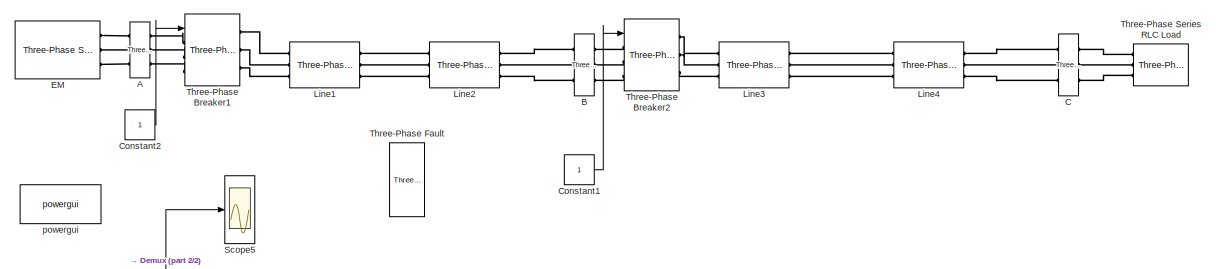
[diagram: root canvas - part 1/2, full width, top band]
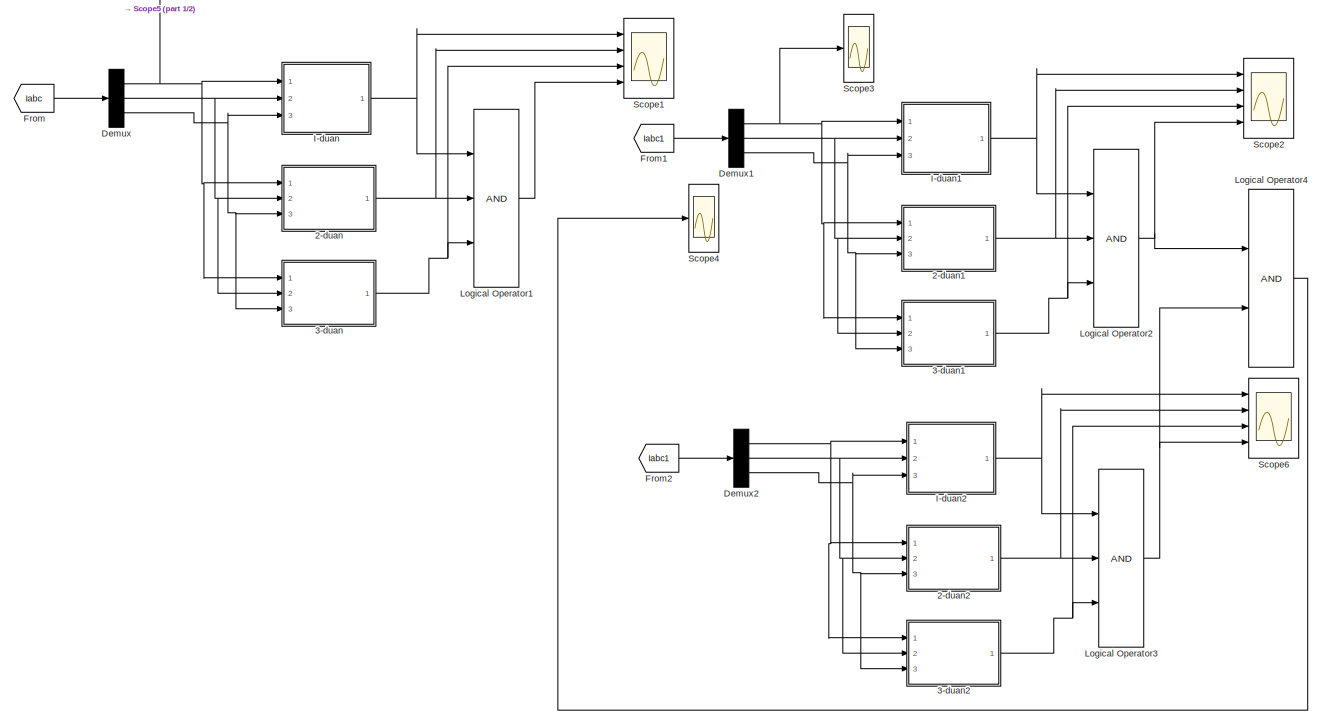
[diagram: root canvas - part 2/2, full width, middle band]
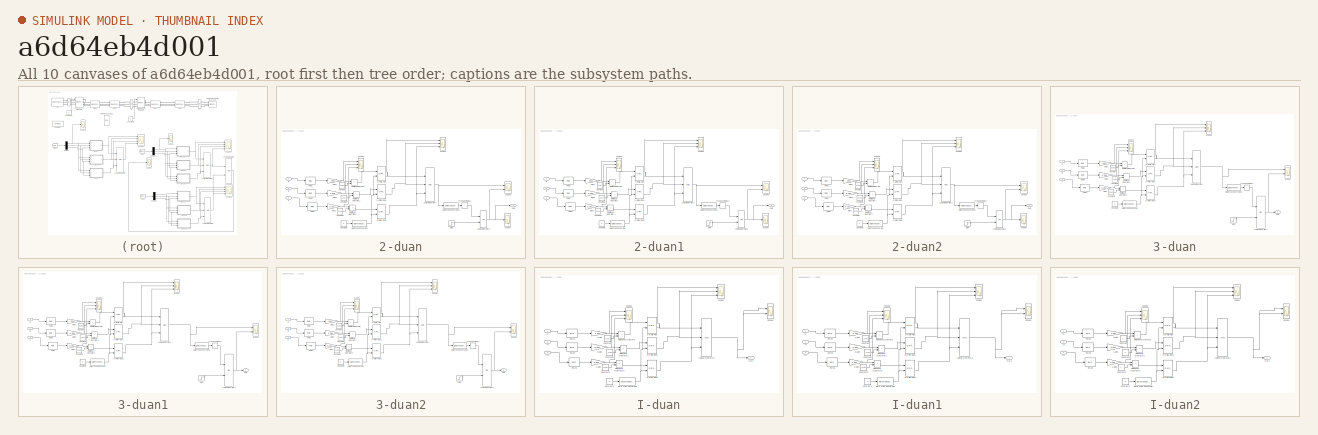
[diagram: thumbnail index - all 10 canvases of the model, root first then tree order]
MODEL slx_a6d64eb4d001
KIND model
CONFIG AbsTol = auto
CONFIG EnableMultiTasking = off
CONFIG FixedStep = auto
CONFIG MaxStep = auto
CONFIG MinStep = auto
CONFIG RelTol = 1e-3
CONFIG SampleTimeConstraint = Unconstrained
CONFIG Solver = ode23s
CONFIG SolverName = ode23s
CONFIG StartTime = 0.0
CONFIG StopTime = 2
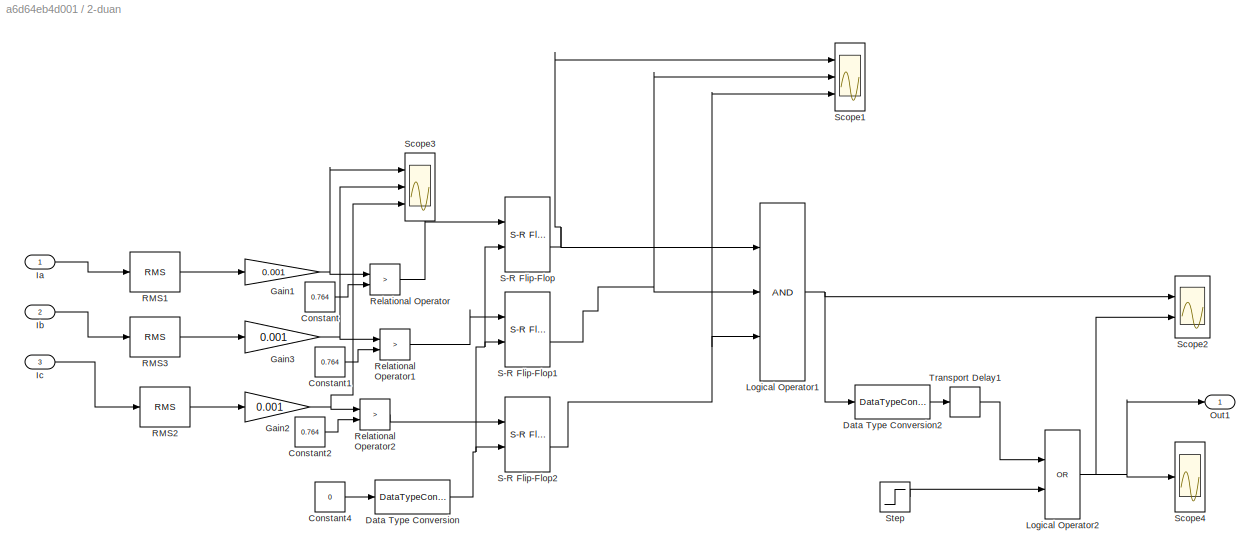
BLOCK [SubSystem] 2-duan
  Ports = [3, 1]
  RequestExecContextInheritance = off
BLOCK [Constant] 2-duan/Constant
  Value = 0.764
BLOCK [Constant] 2-duan/Constant1
  Value = 0.764
BLOCK [Constant] 2-duan/Constant2
  Value = 0.764
BLOCK [Constant] 2-duan/Constant4
  Value = 0
BLOCK [DataTypeConversion] 2-duan/Data Type Conversion
  OutDataTypeStr = boolean
  RndMeth = Floor
  SaturateOnIntegerOverflow = off
BLOCK [DataTypeConversion] 2-duan/Data Type Conversion2
  OutDataTypeStr = double
  RndMeth = Floor
  SaturateOnIntegerOverflow = off
BLOCK [Gain] 2-duan/Gain1
  Gain = 0.001
  OutDataTypeStr = Inherit: Inherit via internal rule
  ParamDataTypeStr = Inherit: Inherit via internal rule
  SaturateOnIntegerOverflow = off
BLOCK [Gain] 2-duan/Gain2
  Gain = 0.001
  OutDataTypeStr = Inherit: Inherit via internal rule
  ParamDataTypeStr = Inherit: Inherit via internal rule
  SaturateOnIntegerOverflow = off
BLOCK [Gain] 2-duan/Gain3
  Gain = 0.001
  OutDataTypeStr = Inherit: Inherit via internal rule
  ParamDataTypeStr = Inherit: Inherit via internal rule
  SaturateOnIntegerOverflow = off
BLOCK [Inport] 2-duan/Ia
  IconDisplay = Port number
BLOCK [Inport] 2-duan/Ib
  IconDisplay = Port number
  Port = 2
BLOCK [Inport] 2-duan/Ic
  IconDisplay = Port number
  Port = 3
BLOCK [Logic] 2-duan/Logical Operator1
  AllPortsSameDT = off
  Inputs = 3
  OutDataTypeStr = boolean
  Ports = [3, 1]
BLOCK [Logic] 2-duan/Logical Operator2
  AllPortsSameDT = off
  Operator = OR
  OutDataTypeStr = boolean
  Ports = [2, 1]
BLOCK [Outport] 2-duan/Out1
  IconDisplay = Port number
BLOCK [Reference] 2-duan/RMS1  REF=powerlib_meascontrol/Measurements/RMS
  Ports = [1, 1]
  SourceBlock = powerlib_meascontrol/Measurements/RMS
  SourceProductBaseCode = PS
  SourceProductName = Simscape Electrical
  SourceType = RMS
BLOCK [Reference] 2-duan/RMS2  REF=powerlib_meascontrol/Measurements/RMS
  Ports = [1, 1]
  SourceBlock = powerlib_meascontrol/Measurements/RMS
  SourceProductBaseCode = PS
  SourceProductName = Simscape Electrical
  SourceType = RMS
BLOCK [Reference] 2-duan/RMS3  REF=powerlib_meascontrol/Measurements/RMS
  Ports = [1, 1]
  SourceBlock = powerlib_meascontrol/Measurements/RMS
  SourceProductBaseCode = PS
  SourceProductName = Simscape Electrical
  SourceType = RMS
BLOCK [RelationalOperator] 2-duan/Relational Operator
  InputSameDT = off
  Operator = >
  OutDataTypeStr = boolean
  Ports = [2, 1]
BLOCK [RelationalOperator] 2-duan/Relational Operator1
  InputSameDT = off
  Operator = >
  OutDataTypeStr = boolean
  Ports = [2, 1]
BLOCK [RelationalOperator] 2-duan/Relational Operator2
  InputSameDT = off
  Operator = >
  OutDataTypeStr = boolean
  Ports = [2, 1]
BLOCK [Reference] 2-duan/S-R Flip-Flop  REF=simulink_extras/Flip Flops/S-R
Flip-Flop
  Ports = [2, 2]
  SourceBlock = simulink_extras/Flip Flops/S-R\nFlip-Flop
  SourceProductBaseCode = SL
  SourceProductName = Simulink
  SourceType = SRFlipFlop
BLOCK [Reference] 2-duan/S-R Flip-Flop1  REF=simulink_extras/Flip Flops/S-R
Flip-Flop
  Ports = [2, 2]
  SourceBlock = simulink_extras/Flip Flops/S-R\nFlip-Flop
  SourceProductBaseCode = SL
  SourceProductName = Simulink
  SourceType = SRFlipFlop
BLOCK [Reference] 2-duan/S-R Flip-Flop2  REF=simulink_extras/Flip Flops/S-R
Flip-Flop
  Ports = [2, 2]
  SourceBlock = simulink_extras/Flip Flops/S-R\nFlip-Flop
  SourceProductBaseCode = SL
  SourceProductName = Simulink
  SourceType = SRFlipFlop
BLOCK [Scope] 2-duan/Scope1
  Floating = off
  NumInputPorts = 3
  Ports = [3]
  ScopeSpecificationString = C++SS(StrPVP('Open','off'),StrPVP('TimeRange','auto'),StrPVP('TickLabels','OneTimeTick'),StrPVP('ShowLegends','off'),StrPVP('LimitDataPoints','off'),StrPVP('MaxDataPoints','5000'),StrPVP('SaveToWorkspace','off'),StrPVP('SaveName','ScopeData'),StrPVP('YMin','-0.125~-0.125~0.9'),StrPVP('YMax','1.125~1.125~1.1'),StrPVP('BlockParamSampleInput','off'),StrPVP('BlockParamSampleTime','-1'),StrPVP('ZoomMod...<+554ch>  <repeated x8 — deduplicated; at blocks: Scope1>
BLOCK [Scope] 2-duan/Scope2
  Floating = off
  NumInputPorts = 2
  Ports = [2]
  ScopeSpecificationString = C++SS(StrPVP('Open','off'),StrPVP('TimeRange','auto'),StrPVP('TickLabels','OneTimeTick'),StrPVP('ShowLegends','off'),StrPVP('LimitDataPoints','off'),StrPVP('MaxDataPoints','5000'),StrPVP('SaveToWorkspace','off'),StrPVP('SaveName','ScopeData2'),StrPVP('YMin','-0.125~-0.125'),StrPVP('YMax','1.125~1.125'),StrPVP('BlockParamSampleInput','off'),StrPVP('BlockParamSampleTime','-1'),StrPVP('ZoomMode','on'...<+518ch>  <repeated x6 — deduplicated; at blocks: Scope2>
BLOCK [Scope] 2-duan/Scope3
  Floating = off
  NumInputPorts = 3
  Ports = [3]
  ScopeSpecificationString = C++SS(StrPVP('Open','off'),StrPVP('TimeRange','auto'),StrPVP('TickLabels','OneTimeTick'),StrPVP('ShowLegends','off'),StrPVP('LimitDataPoints','off'),StrPVP('MaxDataPoints','5000'),StrPVP('SaveToWorkspace','off'),StrPVP('SaveName','ScopeData1'),StrPVP('YMin','-0.17216~-0.16711~-0.16783'),StrPVP('YMax','1.54943~1.50397~1.51049'),StrPVP('BlockParamSampleInput','off'),StrPVP('BlockParamSampleTime','-1...<+670ch>  <repeated x3 — deduplicated; at blocks: Scope3>
BLOCK [Scope] 2-duan/Scope4
  Floating = off
  NumInputPorts = 1
  Ports = [1]
  ScopeSpecificationString = C++SS(StrPVP('Open','off'),StrPVP('TimeRange','auto'),StrPVP('TickLabels','OneTimeTick'),StrPVP('ShowLegends','off'),StrPVP('LimitDataPoints','off'),StrPVP('MaxDataPoints','5000'),StrPVP('SaveToWorkspace','off'),StrPVP('SaveName','ScopeData2'),StrPVP('YMin','0.9'),StrPVP('YMax','1.1'),StrPVP('BlockParamSampleInput','off'),StrPVP('BlockParamSampleTime','-1'),StrPVP('ZoomMode','on'),StrPVP('Grid','o...<+471ch>  <repeated x3 — deduplicated; at blocks: Scope4>
BLOCK [Step] 2-duan/Step
  After = 0
  Before = 1
  SampleTime = 0
  Time = 0.501
BLOCK [TransportDelay] 2-duan/Transport Delay1
  DelayTime = 0.5
  Ports = [1, 1]
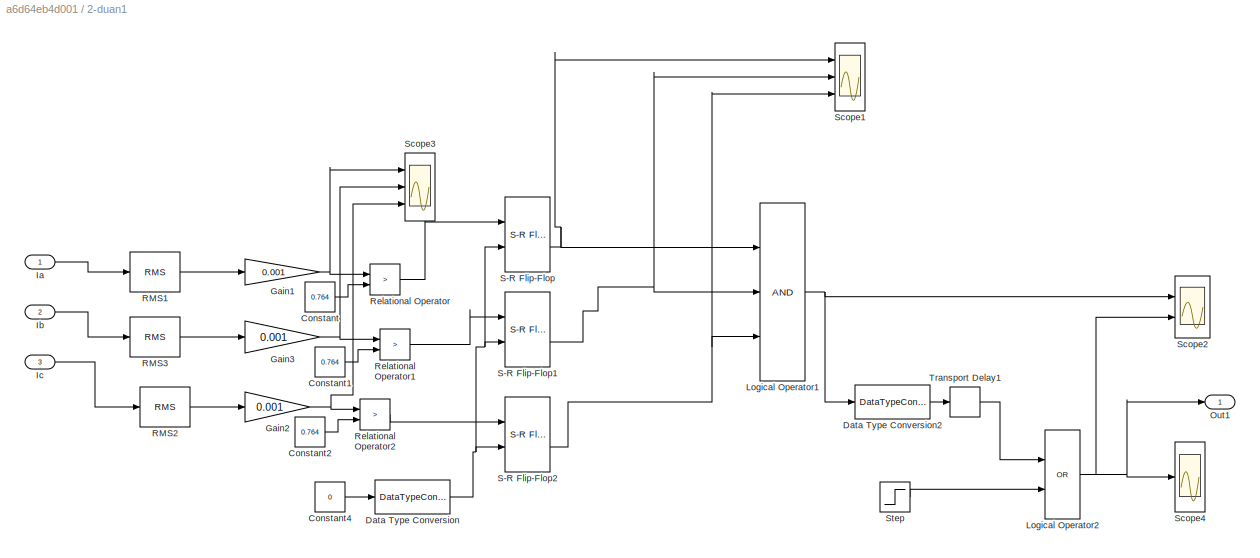
BLOCK [SubSystem] 2-duan1
  Ports = [3, 1]
  RequestExecContextInheritance = off
BLOCK [Constant] 2-duan1/Constant
  Value = 0.764
BLOCK [Constant] 2-duan1/Constant1
  Value = 0.764
BLOCK [Constant] 2-duan1/Constant2
  Value = 0.764
BLOCK [Constant] 2-duan1/Constant4
  Value = 0
BLOCK [DataTypeConversion] 2-duan1/Data Type Conversion
  OutDataTypeStr = boolean
  RndMeth = Floor
  SaturateOnIntegerOverflow = off
BLOCK [DataTypeConversion] 2-duan1/Data Type Conversion2
  OutDataTypeStr = double
  RndMeth = Floor
  SaturateOnIntegerOverflow = off
BLOCK [Gain] 2-duan1/Gain1
  Gain = 0.001
  OutDataTypeStr = Inherit: Inherit via internal rule
  ParamDataTypeStr = Inherit: Inherit via internal rule
  SaturateOnIntegerOverflow = off
BLOCK [Gain] 2-duan1/Gain2
  Gain = 0.001
  OutDataTypeStr = Inherit: Inherit via internal rule
  ParamDataTypeStr = Inherit: Inherit via internal rule
  SaturateOnIntegerOverflow = off
BLOCK [Gain] 2-duan1/Gain3
  Gain = 0.001
  OutDataTypeStr = Inherit: Inherit via internal rule
  ParamDataTypeStr = Inherit: Inherit via internal rule
  SaturateOnIntegerOverflow = off
BLOCK [Inport] 2-duan1/Ia
  IconDisplay = Port number
BLOCK [Inport] 2-duan1/Ib
  IconDisplay = Port number
  Port = 2
BLOCK [Inport] 2-duan1/Ic
  IconDisplay = Port number
  Port = 3
BLOCK [Logic] 2-duan1/Logical Operator1
  AllPortsSameDT = off
  Inputs = 3
  OutDataTypeStr = boolean
  Ports = [3, 1]
BLOCK [Logic] 2-duan1/Logical Operator2
  AllPortsSameDT = off
  Operator = OR
  OutDataTypeStr = boolean
  Ports = [2, 1]
BLOCK [Outport] 2-duan1/Out1
  IconDisplay = Port number
BLOCK [Reference] 2-duan1/RMS1  REF=powerlib_meascontrol/Measurements/RMS
  Ports = [1, 1]
  SourceBlock = powerlib_meascontrol/Measurements/RMS
  SourceProductBaseCode = PS
  SourceProductName = Simscape Electrical
  SourceType = RMS
BLOCK [Reference] 2-duan1/RMS2  REF=powerlib_meascontrol/Measurements/RMS
  Ports = [1, 1]
  SourceBlock = powerlib_meascontrol/Measurements/RMS
  SourceProductBaseCode = PS
  SourceProductName = Simscape Electrical
  SourceType = RMS
BLOCK [Reference] 2-duan1/RMS3  REF=powerlib_meascontrol/Measurements/RMS
  Ports = [1, 1]
  SourceBlock = powerlib_meascontrol/Measurements/RMS
  SourceProductBaseCode = PS
  SourceProductName = Simscape Electrical
  SourceType = RMS
BLOCK [RelationalOperator] 2-duan1/Relational Operator
  InputSameDT = off
  Operator = >
  OutDataTypeStr = boolean
  Ports = [2, 1]
BLOCK [RelationalOperator] 2-duan1/Relational Operator1
  InputSameDT = off
  Operator = >
  OutDataTypeStr = boolean
  Ports = [2, 1]
BLOCK [RelationalOperator] 2-duan1/Relational Operator2
  InputSameDT = off
  Operator = >
  OutDataTypeStr = boolean
  Ports = [2, 1]
BLOCK [Reference] 2-duan1/S-R Flip-Flop  REF=simulink_extras/Flip Flops/S-R
Flip-Flop
  Ports = [2, 2]
  SourceBlock = simulink_extras/Flip Flops/S-R\nFlip-Flop
  SourceProductBaseCode = SL
  SourceProductName = Simulink
  SourceType = SRFlipFlop
BLOCK [Reference] 2-duan1/S-R Flip-Flop1  REF=simulink_extras/Flip Flops/S-R
Flip-Flop
  Ports = [2, 2]
  SourceBlock = simulink_extras/Flip Flops/S-R\nFlip-Flop
  SourceProductBaseCode = SL
  SourceProductName = Simulink
  SourceType = SRFlipFlop
BLOCK [Reference] 2-duan1/S-R Flip-Flop2  REF=simulink_extras/Flip Flops/S-R
Flip-Flop
  Ports = [2, 2]
  SourceBlock = simulink_extras/Flip Flops/S-R\nFlip-Flop
  SourceProductBaseCode = SL
  SourceProductName = Simulink
  SourceType = SRFlipFlop
BLOCK [Scope] 2-duan1/Scope1
  Floating = off
  NumInputPorts = 3
  Ports = [3]
BLOCK [Scope] 2-duan1/Scope2
  Floating = off
  NumInputPorts = 2
  Ports = [2]
BLOCK [Scope] 2-duan1/Scope3
  Floating = off
  NumInputPorts = 3
  Ports = [3]
BLOCK [Scope] 2-duan1/Scope4
  Floating = off
  NumInputPorts = 1
  Ports = [1]
BLOCK [Step] 2-duan1/Step
  After = 0
  Before = 1
  SampleTime = 0
  Time = 2
BLOCK [TransportDelay] 2-duan1/Transport Delay1
  DelayTime = 0.5
  Ports = [1, 1]
BLOCK [SubSystem] 2-duan2
  Ports = [3, 1]
  RequestExecContextInheritance = off
BLOCK [Constant] 2-duan2/Constant
  Value = 0.764
BLOCK [Constant] 2-duan2/Constant1
  Value = 0.764
BLOCK [Constant] 2-duan2/Constant2
  Value = 0.764
BLOCK [Constant] 2-duan2/Constant4
  Value = 0
BLOCK [DataTypeConversion] 2-duan2/Data Type Conversion
  OutDataTypeStr = boolean
  RndMeth = Floor
  SaturateOnIntegerOverflow = off
BLOCK [DataTypeConversion] 2-duan2/Data Type Conversion2
  OutDataTypeStr = double
  RndMeth = Floor
  SaturateOnIntegerOverflow = off
BLOCK [Gain] 2-duan2/Gain1
  Gain = 0.001
  OutDataTypeStr = Inherit: Inherit via internal rule
  ParamDataTypeStr = Inherit: Inherit via internal rule
  SaturateOnIntegerOverflow = off
BLOCK [Gain] 2-duan2/Gain2
  Gain = 0.001
  OutDataTypeStr = Inherit: Inherit via internal rule
  ParamDataTypeStr = Inherit: Inherit via internal rule
  SaturateOnIntegerOverflow = off
BLOCK [Gain] 2-duan2/Gain3
  Gain = 0.001
  OutDataTypeStr = Inherit: Inherit via internal rule
  ParamDataTypeStr = Inherit: Inherit via internal rule
  SaturateOnIntegerOverflow = off
BLOCK [Inport] 2-duan2/Ia
  IconDisplay = Port number
BLOCK [Inport] 2-duan2/Ib
  IconDisplay = Port number
  Port = 2
BLOCK [Inport] 2-duan2/Ic
  IconDisplay = Port number
  Port = 3
BLOCK [Logic] 2-duan2/Logical Operator1
  AllPortsSameDT = off
  Inputs = 3
  OutDataTypeStr = boolean
  Ports = [3, 1]
BLOCK [Logic] 2-duan2/Logical Operator2
  AllPortsSameDT = off
  Operator = OR
  OutDataTypeStr = boolean
  Ports = [2, 1]
BLOCK [Outport] 2-duan2/Out1
  IconDisplay = Port number
BLOCK [Reference] 2-duan2/RMS1  REF=powerlib_meascontrol/Measurements/RMS
  Ports = [1, 1]
  SourceBlock = powerlib_meascontrol/Measurements/RMS
  SourceProductBaseCode = PS
  SourceProductName = Simscape Electrical
  SourceType = RMS
BLOCK [Reference] 2-duan2/RMS2  REF=powerlib_meascontrol/Measurements/RMS
  Ports = [1, 1]
  SourceBlock = powerlib_meascontrol/Measurements/RMS
  SourceProductBaseCode = PS
  SourceProductName = Simscape Electrical
  SourceType = RMS
BLOCK [Reference] 2-duan2/RMS3  REF=powerlib_meascontrol/Measurements/RMS
  Ports = [1, 1]
  SourceBlock = powerlib_meascontrol/Measurements/RMS
  SourceProductBaseCode = PS
  SourceProductName = Simscape Electrical
  SourceType = RMS
BLOCK [RelationalOperator] 2-duan2/Relational Operator
  InputSameDT = off
  Operator = >
  OutDataTypeStr = boolean
  Ports = [2, 1]
BLOCK [RelationalOperator] 2-duan2/Relational Operator1
  InputSameDT = off
  Operator = >
  OutDataTypeStr = boolean
  Ports = [2, 1]
BLOCK [RelationalOperator] 2-duan2/Relational Operator2
  InputSameDT = off
  Operator = >
  OutDataTypeStr = boolean
  Ports = [2, 1]
BLOCK [Reference] 2-duan2/S-R Flip-Flop  REF=simulink_extras/Flip Flops/S-R
Flip-Flop
  Ports = [2, 2]
  SourceBlock = simulink_extras/Flip Flops/S-R\nFlip-Flop
  SourceProductBaseCode = SL
  SourceProductName = Simulink
  SourceType = SRFlipFlop
BLOCK [Reference] 2-duan2/S-R Flip-Flop1  REF=simulink_extras/Flip Flops/S-R
Flip-Flop
  Ports = [2, 2]
  SourceBlock = simulink_extras/Flip Flops/S-R\nFlip-Flop
  SourceProductBaseCode = SL
  SourceProductName = Simulink
  SourceType = SRFlipFlop
BLOCK [Reference] 2-duan2/S-R Flip-Flop2  REF=simulink_extras/Flip Flops/S-R
Flip-Flop
  Ports = [2, 2]
  SourceBlock = simulink_extras/Flip Flops/S-R\nFlip-Flop
  SourceProductBaseCode = SL
  SourceProductName = Simulink
  SourceType = SRFlipFlop
BLOCK [Scope] 2-duan2/Scope1
  Floating = off
  NumInputPorts = 3
  Ports = [3]
BLOCK [Scope] 2-duan2/Scope2
  Floating = off
  NumInputPorts = 2
  Ports = [2]
BLOCK [Scope] 2-duan2/Scope3
  Floating = off
  NumInputPorts = 3
  Ports = [3]
BLOCK [Scope] 2-duan2/Scope4
  Floating = off
  NumInputPorts = 1
  Ports = [1]
BLOCK [Step] 2-duan2/Step
  After = 0
  Before = 1
  SampleTime = 0
  Time = 2
BLOCK [TransportDelay] 2-duan2/Transport Delay1
  DelayTime = 0.5
  Ports = [1, 1]
BLOCK [SubSystem] 3-duan
  Ports = [3, 1]
  RequestExecContextInheritance = off
BLOCK [Constant] 3-duan/Constant
  Value = 0.183
BLOCK [Constant] 3-duan/Constant1
  Value = 0.183
BLOCK [Constant] 3-duan/Constant2
  Value = 0.183
BLOCK [Constant] 3-duan/Constant4
  Value = 0
BLOCK [DataTypeConversion] 3-duan/Data Type Conversion
  OutDataTypeStr = boolean
  RndMeth = Floor
  SaturateOnIntegerOverflow = off
BLOCK [DataTypeConversion] 3-duan/Data Type Conversion2
  OutDataTypeStr = double
  RndMeth = Floor
  SaturateOnIntegerOverflow = off
BLOCK [Gain] 3-duan/Gain1
  Gain = 0.001
  OutDataTypeStr = Inherit: Inherit via internal rule
  ParamDataTypeStr = Inherit: Inherit via internal rule
  SaturateOnIntegerOverflow = off
BLOCK [Gain] 3-duan/Gain2
  Gain = 0.001
  OutDataTypeStr = Inherit: Inherit via internal rule
  ParamDataTypeStr = Inherit: Inherit via internal rule
  SaturateOnIntegerOverflow = off
BLOCK [Gain] 3-duan/Gain3
  Gain = 0.001
  OutDataTypeStr = Inherit: Inherit via internal rule
  ParamDataTypeStr = Inherit: Inherit via internal rule
  SaturateOnIntegerOverflow = off
BLOCK [Inport] 3-duan/Ia
  IconDisplay = Port number
BLOCK [Inport] 3-duan/Ib
  IconDisplay = Port number
  Port = 2
BLOCK [Inport] 3-duan/Ic
  IconDisplay = Port number
  Port = 3
BLOCK [Logic] 3-duan/Logical Operator1
  AllPortsSameDT = off
  Inputs = 3
  OutDataTypeStr = boolean
  Ports = [3, 1]
BLOCK [Logic] 3-duan/Logical Operator2
  AllPortsSameDT = off
  Operator = OR
  OutDataTypeStr = boolean
  Ports = [2, 1]
BLOCK [Outport] 3-duan/Out1
  IconDisplay = Port number
BLOCK [Reference] 3-duan/RMS1  REF=powerlib_meascontrol/Measurements/RMS
  Ports = [1, 1]
  SourceBlock = powerlib_meascontrol/Measurements/RMS
  SourceProductBaseCode = PS
  SourceProductName = Simscape Electrical
  SourceType = RMS
BLOCK [Reference] 3-duan/RMS2  REF=powerlib_meascontrol/Measurements/RMS
  Ports = [1, 1]
  SourceBlock = powerlib_meascontrol/Measurements/RMS
  SourceProductBaseCode = PS
  SourceProductName = Simscape Electrical
  SourceType = RMS
BLOCK [Reference] 3-duan/RMS3  REF=powerlib_meascontrol/Measurements/RMS
  Ports = [1, 1]
  SourceBlock = powerlib_meascontrol/Measurements/RMS
  SourceProductBaseCode = PS
  SourceProductName = Simscape Electrical
  SourceType = RMS
BLOCK [RelationalOperator] 3-duan/Relational Operator
  InputSameDT = off
  Operator = >
  OutDataTypeStr = boolean
  Ports = [2, 1]
BLOCK [RelationalOperator] 3-duan/Relational Operator1
  InputSameDT = off
  Operator = >
  OutDataTypeStr = boolean
  Ports = [2, 1]
BLOCK [RelationalOperator] 3-duan/Relational Operator2
  InputSameDT = off
  Operator = >
  OutDataTypeStr = boolean
  Ports = [2, 1]
BLOCK [Reference] 3-duan/S-R Flip-Flop  REF=simulink_extras/Flip Flops/S-R
Flip-Flop
  Ports = [2, 2]
  SourceBlock = simulink_extras/Flip Flops/S-R\nFlip-Flop
  SourceProductBaseCode = SL
  SourceProductName = Simulink
  SourceType = SRFlipFlop
BLOCK [Reference] 3-duan/S-R Flip-Flop1  REF=simulink_extras/Flip Flops/S-R
Flip-Flop
  Ports = [2, 2]
  SourceBlock = simulink_extras/Flip Flops/S-R\nFlip-Flop
  SourceProductBaseCode = SL
  SourceProductName = Simulink
  SourceType = SRFlipFlop
BLOCK [Reference] 3-duan/S-R Flip-Flop2  REF=simulink_extras/Flip Flops/S-R
Flip-Flop
  Ports = [2, 2]
  SourceBlock = simulink_extras/Flip Flops/S-R\nFlip-Flop
  SourceProductBaseCode = SL
  SourceProductName = Simulink
  SourceType = SRFlipFlop
BLOCK [Scope] 3-duan/Scope1
  Floating = off
  NumInputPorts = 3
  Ports = [3]
BLOCK [Scope] 3-duan/Scope2
  Floating = off
  NumInputPorts = 2
  Ports = [2]
BLOCK [Scope] 3-duan/Scope3
  Floating = off
  NumInputPorts = 3
  Ports = [3]
  ScopeSpecificationString = C++SS(StrPVP('Open','off'),StrPVP('TimeRange','auto'),StrPVP('TickLabels','OneTimeTick'),StrPVP('ShowLegends','off'),StrPVP('LimitDataPoints','off'),StrPVP('MaxDataPoints','5000'),StrPVP('SaveToWorkspace','off'),StrPVP('SaveName','ScopeData1'),StrPVP('YMin','-0.27745~-0.25364~-0.24876'),StrPVP('YMax','2.49701~2.28279~2.23883'),StrPVP('BlockParamSampleInput','off'),StrPVP('BlockParamSampleTime','-1...<+670ch>  <repeated x4 — deduplicated; at blocks: Scope3>
BLOCK [Step] 3-duan/Step
  After = 0
  Before = 1
  SampleTime = 0
  Time = 1.501
BLOCK [TransportDelay] 3-duan/Transport Delay1
  DelayTime = 1.5
  Ports = [1, 1]
BLOCK [SubSystem] 3-duan1
  Ports = [3, 1]
  RequestExecContextInheritance = off
BLOCK [Constant] 3-duan1/Constant
  Value = 0.183
BLOCK [Constant] 3-duan1/Constant1
  Value = 0.183
BLOCK [Constant] 3-duan1/Constant2
  Value = 0.183
BLOCK [Constant] 3-duan1/Constant4
  Value = 0
BLOCK [DataTypeConversion] 3-duan1/Data Type Conversion
  OutDataTypeStr = boolean
  RndMeth = Floor
  SaturateOnIntegerOverflow = off
BLOCK [DataTypeConversion] 3-duan1/Data Type Conversion2
  OutDataTypeStr = double
  RndMeth = Floor
  SaturateOnIntegerOverflow = off
BLOCK [Gain] 3-duan1/Gain1
  Gain = 0.001
  OutDataTypeStr = Inherit: Inherit via internal rule
  ParamDataTypeStr = Inherit: Inherit via internal rule
  SaturateOnIntegerOverflow = off
BLOCK [Gain] 3-duan1/Gain2
  Gain = 0.001
  OutDataTypeStr = Inherit: Inherit via internal rule
  ParamDataTypeStr = Inherit: Inherit via internal rule
  SaturateOnIntegerOverflow = off
BLOCK [Gain] 3-duan1/Gain3
  Gain = 0.001
  OutDataTypeStr = Inherit: Inherit via internal rule
  ParamDataTypeStr = Inherit: Inherit via internal rule
  SaturateOnIntegerOverflow = off
BLOCK [Inport] 3-duan1/Ia
  IconDisplay = Port number
BLOCK [Inport] 3-duan1/Ib
  IconDisplay = Port number
  Port = 2
BLOCK [Inport] 3-duan1/Ic
  IconDisplay = Port number
  Port = 3
BLOCK [Logic] 3-duan1/Logical Operator1
  AllPortsSameDT = off
  Inputs = 3
  OutDataTypeStr = boolean
  Ports = [3, 1]
BLOCK [Logic] 3-duan1/Logical Operator2
  AllPortsSameDT = off
  Operator = OR
  OutDataTypeStr = boolean
  Ports = [2, 1]
BLOCK [Outport] 3-duan1/Out1
  IconDisplay = Port number
BLOCK [Reference] 3-duan1/RMS1  REF=powerlib_meascontrol/Measurements/RMS
  Ports = [1, 1]
  SourceBlock = powerlib_meascontrol/Measurements/RMS
  SourceProductBaseCode = PS
  SourceProductName = Simscape Electrical
  SourceType = RMS
BLOCK [Reference] 3-duan1/RMS2  REF=powerlib_meascontrol/Measurements/RMS
  Ports = [1, 1]
  SourceBlock = powerlib_meascontrol/Measurements/RMS
  SourceProductBaseCode = PS
  SourceProductName = Simscape Electrical
  SourceType = RMS
BLOCK [Reference] 3-duan1/RMS3  REF=powerlib_meascontrol/Measurements/RMS
  Ports = [1, 1]
  SourceBlock = powerlib_meascontrol/Measurements/RMS
  SourceProductBaseCode = PS
  SourceProductName = Simscape Electrical
  SourceType = RMS
BLOCK [RelationalOperator] 3-duan1/Relational Operator
  InputSameDT = off
  Operator = >
  OutDataTypeStr = boolean
  Ports = [2, 1]
BLOCK [RelationalOperator] 3-duan1/Relational Operator1
  InputSameDT = off
  Operator = >
  OutDataTypeStr = boolean
  Ports = [2, 1]
BLOCK [RelationalOperator] 3-duan1/Relational Operator2
  InputSameDT = off
  Operator = >
  OutDataTypeStr = boolean
  Ports = [2, 1]
BLOCK [Reference] 3-duan1/S-R Flip-Flop  REF=simulink_extras/Flip Flops/S-R
Flip-Flop
  Ports = [2, 2]
  SourceBlock = simulink_extras/Flip Flops/S-R\nFlip-Flop
  SourceProductBaseCode = SL
  SourceProductName = Simulink
  SourceType = SRFlipFlop
BLOCK [Reference] 3-duan1/S-R Flip-Flop1  REF=simulink_extras/Flip Flops/S-R
Flip-Flop
  Ports = [2, 2]
  SourceBlock = simulink_extras/Flip Flops/S-R\nFlip-Flop
  SourceProductBaseCode = SL
  SourceProductName = Simulink
  SourceType = SRFlipFlop
BLOCK [Reference] 3-duan1/S-R Flip-Flop2  REF=simulink_extras/Flip Flops/S-R
Flip-Flop
  Ports = [2, 2]
  SourceBlock = simulink_extras/Flip Flops/S-R\nFlip-Flop
  SourceProductBaseCode = SL
  SourceProductName = Simulink
  SourceType = SRFlipFlop
BLOCK [Scope] 3-duan1/Scope1
  Floating = off
  NumInputPorts = 3
  Ports = [3]
BLOCK [Scope] 3-duan1/Scope2
  Floating = off
  NumInputPorts = 2
  Ports = [2]
BLOCK [Scope] 3-duan1/Scope3
  Floating = off
  NumInputPorts = 3
  Ports = [3]
BLOCK [Step] 3-duan1/Step
  After = 0
  Before = 1
  SampleTime = 0
  Time = 2
BLOCK [TransportDelay] 3-duan1/Transport Delay1
  DelayTime = 1.5
  Ports = [1, 1]
BLOCK [SubSystem] 3-duan2
  Ports = [3, 1]
  RequestExecContextInheritance = off
BLOCK [Constant] 3-duan2/Constant
  Value = 0.183
BLOCK [Constant] 3-duan2/Constant1
  Value = 0.183
BLOCK [Constant] 3-duan2/Constant2
  Value = 0.183
BLOCK [Constant] 3-duan2/Constant4
  Value = 0
BLOCK [DataTypeConversion] 3-duan2/Data Type Conversion
  OutDataTypeStr = boolean
  RndMeth = Floor
  SaturateOnIntegerOverflow = off
BLOCK [DataTypeConversion] 3-duan2/Data Type Conversion2
  OutDataTypeStr = double
  RndMeth = Floor
  SaturateOnIntegerOverflow = off
BLOCK [Gain] 3-duan2/Gain1
  Gain = 0.001
  OutDataTypeStr = Inherit: Inherit via internal rule
  ParamDataTypeStr = Inherit: Inherit via internal rule
  SaturateOnIntegerOverflow = off
BLOCK [Gain] 3-duan2/Gain2
  Gain = 0.001
  OutDataTypeStr = Inherit: Inherit via internal rule
  ParamDataTypeStr = Inherit: Inherit via internal rule
  SaturateOnIntegerOverflow = off
BLOCK [Gain] 3-duan2/Gain3
  Gain = 0.001
  OutDataTypeStr = Inherit: Inherit via internal rule
  ParamDataTypeStr = Inherit: Inherit via internal rule
  SaturateOnIntegerOverflow = off
BLOCK [Inport] 3-duan2/Ia
  IconDisplay = Port number
BLOCK [Inport] 3-duan2/Ib
  IconDisplay = Port number
  Port = 2
BLOCK [Inport] 3-duan2/Ic
  IconDisplay = Port number
  Port = 3
BLOCK [Logic] 3-duan2/Logical Operator1
  AllPortsSameDT = off
  Inputs = 3
  OutDataTypeStr = boolean
  Ports = [3, 1]
BLOCK [Logic] 3-duan2/Logical Operator2
  AllPortsSameDT = off
  Operator = OR
  OutDataTypeStr = boolean
  Ports = [2, 1]
BLOCK [Outport] 3-duan2/Out1
  IconDisplay = Port number
BLOCK [Reference] 3-duan2/RMS1  REF=powerlib_meascontrol/Measurements/RMS
  Ports = [1, 1]
  SourceBlock = powerlib_meascontrol/Measurements/RMS
  SourceProductBaseCode = PS
  SourceProductName = Simscape Electrical
  SourceType = RMS
BLOCK [Reference] 3-duan2/RMS2  REF=powerlib_meascontrol/Measurements/RMS
  Ports = [1, 1]
  SourceBlock = powerlib_meascontrol/Measurements/RMS
  SourceProductBaseCode = PS
  SourceProductName = Simscape Electrical
  SourceType = RMS
BLOCK [Reference] 3-duan2/RMS3  REF=powerlib_meascontrol/Measurements/RMS
  Ports = [1, 1]
  SourceBlock = powerlib_meascontrol/Measurements/RMS
  SourceProductBaseCode = PS
  SourceProductName = Simscape Electrical
  SourceType = RMS
BLOCK [RelationalOperator] 3-duan2/Relational Operator
  InputSameDT = off
  Operator = >
  OutDataTypeStr = boolean
  Ports = [2, 1]
BLOCK [RelationalOperator] 3-duan2/Relational Operator1
  InputSameDT = off
  Operator = >
  OutDataTypeStr = boolean
  Ports = [2, 1]
BLOCK [RelationalOperator] 3-duan2/Relational Operator2
  InputSameDT = off
  Operator = >
  OutDataTypeStr = boolean
  Ports = [2, 1]
BLOCK [Reference] 3-duan2/S-R Flip-Flop  REF=simulink_extras/Flip Flops/S-R
Flip-Flop
  Ports = [2, 2]
  SourceBlock = simulink_extras/Flip Flops/S-R\nFlip-Flop
  SourceProductBaseCode = SL
  SourceProductName = Simulink
  SourceType = SRFlipFlop
BLOCK [Reference] 3-duan2/S-R Flip-Flop1  REF=simulink_extras/Flip Flops/S-R
Flip-Flop
  Ports = [2, 2]
  SourceBlock = simulink_extras/Flip Flops/S-R\nFlip-Flop
  SourceProductBaseCode = SL
  SourceProductName = Simulink
  SourceType = SRFlipFlop
BLOCK [Reference] 3-duan2/S-R Flip-Flop2  REF=simulink_extras/Flip Flops/S-R
Flip-Flop
  Ports = [2, 2]
  SourceBlock = simulink_extras/Flip Flops/S-R\nFlip-Flop
  SourceProductBaseCode = SL
  SourceProductName = Simulink
  SourceType = SRFlipFlop
BLOCK [Scope] 3-duan2/Scope1
  Floating = off
  NumInputPorts = 3
  Ports = [3]
BLOCK [Scope] 3-duan2/Scope2
  Floating = off
  NumInputPorts = 2
  Ports = [2]
BLOCK [Scope] 3-duan2/Scope3
  Floating = off
  NumInputPorts = 3
  Ports = [3]
BLOCK [Step] 3-duan2/Step
  After = 0
  Before = 1
  SampleTime = 0
  Time = 2
BLOCK [TransportDelay] 3-duan2/Transport Delay1
  DelayTime = 1.5
  Ports = [1, 1]
BLOCK [Reference] A  REF=powerlib/Measurements/Three-Phase
V-I Measurement
  Ports = [0, 0, 0, 0, 0, 3, 3]
  SourceBlock = powerlib/Measurements/Three-Phase\nV-I Measurement
  SourceProductBaseCode = PS
  SourceProductName = Simscape Electrical
  SourceType = Three-Phase VI Measurement
BLOCK [Reference] B  REF=powerlib/Measurements/Three-Phase
V-I Measurement
  Ports = [0, 0, 0, 0, 0, 3, 3]
  SourceBlock = powerlib/Measurements/Three-Phase\nV-I Measurement
  SourceProductBaseCode = PS
  SourceProductName = Simscape Electrical
  SourceType = Three-Phase VI Measurement
BLOCK [Reference] C  REF=powerlib/Measurements/Three-Phase
V-I Measurement
  Ports = [0, 0, 0, 0, 0, 3, 3]
  SourceBlock = powerlib/Measurements/Three-Phase\nV-I Measurement
  SourceProductBaseCode = PS
  SourceProductName = Simscape Electrical
  SourceType = Three-Phase VI Measurement
BLOCK [Constant] Constant1
BLOCK [Constant] Constant2
BLOCK [Demux] Demux
  DisplayOption = bar
  Outputs = 3
  Ports = [1, 3]
BLOCK [Demux] Demux1
  DisplayOption = bar
  Outputs = 3
  Ports = [1, 3]
BLOCK [Demux] Demux2
  DisplayOption = bar
  Outputs = 3
  Ports = [1, 3]
BLOCK [Reference] EM  REF=powerlib/Electrical
Sources/Three-Phase Source
  Ports = [0, 0, 0, 0, 0, 0, 3]
  SourceBlock = powerlib/Electrical\nSources/Three-Phase Source
  SourceProductBaseCode = PS
  SourceProductName = Simscape Electrical
  SourceType = Three-Phase Source
BLOCK [From] From
  GotoTag = Iabc
  TagVisibility = global
BLOCK [From] From1
  GotoTag = Iabc1
  TagVisibility = global
BLOCK [From] From2
  GotoTag = Iabc1
  TagVisibility = global
BLOCK [SubSystem] I-duan
  Ports = [3, 1]
  RequestExecContextInheritance = off
BLOCK [Constant] I-duan/Constant
  Value = 1.736
BLOCK [Constant] I-duan/Constant1
  Value = 1.736
BLOCK [Constant] I-duan/Constant2
  Value = 1.736
BLOCK [Constant] I-duan/Constant4
  Value = 0
BLOCK [DataTypeConversion] I-duan/Data Type Conversion
  OutDataTypeStr = boolean
  RndMeth = Floor
  SaturateOnIntegerOverflow = off
BLOCK [Gain] I-duan/Gain1
  Gain = 0.001
  OutDataTypeStr = Inherit: Inherit via internal rule
  ParamDataTypeStr = Inherit: Inherit via internal rule
  SaturateOnIntegerOverflow = off
BLOCK [Gain] I-duan/Gain2
  Gain = 0.001
  OutDataTypeStr = Inherit: Inherit via internal rule
  ParamDataTypeStr = Inherit: Inherit via internal rule
  SaturateOnIntegerOverflow = off
BLOCK [Gain] I-duan/Gain3
  Gain = 0.001
  OutDataTypeStr = Inherit: Inherit via internal rule
  ParamDataTypeStr = Inherit: Inherit via internal rule
  SaturateOnIntegerOverflow = off
BLOCK [Inport] I-duan/Ia
  IconDisplay = Port number
BLOCK [Inport] I-duan/Ib
  IconDisplay = Port number
  Port = 2
BLOCK [Inport] I-duan/Ic
  IconDisplay = Port number
  Port = 3
BLOCK [Logic] I-duan/Logical Operator1
  AllPortsSameDT = off
  Inputs = 3
  OutDataTypeStr = boolean
  Ports = [3, 1]
BLOCK [Outport] I-duan/Out1
  IconDisplay = Port number
BLOCK [Reference] I-duan/RMS1  REF=powerlib_meascontrol/Measurements/RMS
  Ports = [1, 1]
  SourceBlock = powerlib_meascontrol/Measurements/RMS
  SourceProductBaseCode = PS
  SourceProductName = Simscape Electrical
  SourceType = RMS
BLOCK [Reference] I-duan/RMS2  REF=powerlib_meascontrol/Measurements/RMS
  Ports = [1, 1]
  SourceBlock = powerlib_meascontrol/Measurements/RMS
  SourceProductBaseCode = PS
  SourceProductName = Simscape Electrical
  SourceType = RMS
BLOCK [Reference] I-duan/RMS3  REF=powerlib_meascontrol/Measurements/RMS
  Ports = [1, 1]
  SourceBlock = powerlib_meascontrol/Measurements/RMS
  SourceProductBaseCode = PS
  SourceProductName = Simscape Electrical
  SourceType = RMS
BLOCK [RelationalOperator] I-duan/Relational Operator
  InputSameDT = off
  Operator = >
  OutDataTypeStr = boolean
  Ports = [2, 1]
BLOCK [RelationalOperator] I-duan/Relational Operator1
  InputSameDT = off
  Operator = >
  OutDataTypeStr = boolean
  Ports = [2, 1]
BLOCK [RelationalOperator] I-duan/Relational Operator2
  InputSameDT = off
  Operator = >
  OutDataTypeStr = boolean
  Ports = [2, 1]
BLOCK [Reference] I-duan/S-R Flip-Flop  REF=simulink_extras/Flip Flops/S-R
Flip-Flop
  Ports = [2, 2]
  SourceBlock = simulink_extras/Flip Flops/S-R\nFlip-Flop
  SourceProductBaseCode = SL
  SourceProductName = Simulink
  SourceType = SRFlipFlop
BLOCK [Reference] I-duan/S-R Flip-Flop1  REF=simulink_extras/Flip Flops/S-R
Flip-Flop
  Ports = [2, 2]
  SourceBlock = simulink_extras/Flip Flops/S-R\nFlip-Flop
  SourceProductBaseCode = SL
  SourceProductName = Simulink
  SourceType = SRFlipFlop
BLOCK [Reference] I-duan/S-R Flip-Flop2  REF=simulink_extras/Flip Flops/S-R
Flip-Flop
  Ports = [2, 2]
  SourceBlock = simulink_extras/Flip Flops/S-R\nFlip-Flop
  SourceProductBaseCode = SL
  SourceProductName = Simulink
  SourceType = SRFlipFlop
BLOCK [Scope] I-duan/Scope1
  Floating = off
  NumInputPorts = 3
  Ports = [3]
  ScopeSpecificationString = C++SS(StrPVP('Open','off'),StrPVP('TimeRange','auto'),StrPVP('TickLabels','OneTimeTick'),StrPVP('ShowLegends','off'),StrPVP('LimitDataPoints','off'),StrPVP('MaxDataPoints','5000'),StrPVP('SaveToWorkspace','on'),StrPVP('SaveName','ScopeData'),StrPVP('YMin','-0.125~-0.125~0.9'),StrPVP('YMax','1.125~1.125~1.1'),StrPVP('BlockParamSampleInput','off'),StrPVP('BlockParamSampleTime','-1'),StrPVP('ZoomMode...<+553ch>
BLOCK [Scope] I-duan/Scope2
  Floating = off
  NumInputPorts = 2
  Ports = [2]
  ScopeSpecificationString = C++SS(StrPVP('Open','off'),StrPVP('TimeRange','auto'),StrPVP('TickLabels','OneTimeTick'),StrPVP('ShowLegends','off'),StrPVP('LimitDataPoints','off'),StrPVP('MaxDataPoints','5000'),StrPVP('SaveToWorkspace','off'),StrPVP('SaveName','ScopeData2'),StrPVP('YMin','0.9~0.9'),StrPVP('YMax','1.1~1.1'),StrPVP('BlockParamSampleInput','off'),StrPVP('BlockParamSampleTime','-1'),StrPVP('ZoomMode','on'),StrPVP('...<+508ch>  <repeated x3 — deduplicated; at blocks: Scope2>
BLOCK [Scope] I-duan/Scope3
  Floating = off
  NumInputPorts = 3
  Ports = [3]
BLOCK [SubSystem] I-duan1
  Ports = [3, 1]
  RequestExecContextInheritance = off
BLOCK [Constant] I-duan1/Constant
  Value = 1.736
BLOCK [Constant] I-duan1/Constant1
  Value = 1.736
BLOCK [Constant] I-duan1/Constant2
  Value = 1.736
BLOCK [Constant] I-duan1/Constant4
  Value = 0
BLOCK [DataTypeConversion] I-duan1/Data Type Conversion
  OutDataTypeStr = boolean
  RndMeth = Floor
  SaturateOnIntegerOverflow = off
BLOCK [Gain] I-duan1/Gain1
  Gain = 0.001
  OutDataTypeStr = Inherit: Inherit via internal rule
  ParamDataTypeStr = Inherit: Inherit via internal rule
  SaturateOnIntegerOverflow = off
BLOCK [Gain] I-duan1/Gain2
  Gain = 0.001
  OutDataTypeStr = Inherit: Inherit via internal rule
  ParamDataTypeStr = Inherit: Inherit via internal rule
  SaturateOnIntegerOverflow = off
BLOCK [Gain] I-duan1/Gain3
  Gain = 0.001
  OutDataTypeStr = Inherit: Inherit via internal rule
  ParamDataTypeStr = Inherit: Inherit via internal rule
  SaturateOnIntegerOverflow = off
BLOCK [Inport] I-duan1/Ia
  IconDisplay = Port number
BLOCK [Inport] I-duan1/Ib
  IconDisplay = Port number
  Port = 2
BLOCK [Inport] I-duan1/Ic
  IconDisplay = Port number
  Port = 3
BLOCK [Logic] I-duan1/Logical Operator1
  AllPortsSameDT = off
  Inputs = 3
  OutDataTypeStr = boolean
  Ports = [3, 1]
BLOCK [Outport] I-duan1/Out1
  IconDisplay = Port number
BLOCK [Reference] I-duan1/RMS1  REF=powerlib_meascontrol/Measurements/RMS
  Ports = [1, 1]
  SourceBlock = powerlib_meascontrol/Measurements/RMS
  SourceProductBaseCode = PS
  SourceProductName = Simscape Electrical
  SourceType = RMS
BLOCK [Reference] I-duan1/RMS2  REF=powerlib_meascontrol/Measurements/RMS
  Ports = [1, 1]
  SourceBlock = powerlib_meascontrol/Measurements/RMS
  SourceProductBaseCode = PS
  SourceProductName = Simscape Electrical
  SourceType = RMS
BLOCK [Reference] I-duan1/RMS3  REF=powerlib_meascontrol/Measurements/RMS
  Ports = [1, 1]
  SourceBlock = powerlib_meascontrol/Measurements/RMS
  SourceProductBaseCode = PS
  SourceProductName = Simscape Electrical
  SourceType = RMS
BLOCK [RelationalOperator] I-duan1/Relational Operator
  InputSameDT = off
  Operator = >
  OutDataTypeStr = boolean
  Ports = [2, 1]
BLOCK [RelationalOperator] I-duan1/Relational Operator1
  InputSameDT = off
  Operator = >
  OutDataTypeStr = boolean
  Ports = [2, 1]
BLOCK [RelationalOperator] I-duan1/Relational Operator2
  InputSameDT = off
  Operator = >
  OutDataTypeStr = boolean
  Ports = [2, 1]
BLOCK [Reference] I-duan1/S-R Flip-Flop  REF=simulink_extras/Flip Flops/S-R
Flip-Flop
  Ports = [2, 2]
  SourceBlock = simulink_extras/Flip Flops/S-R\nFlip-Flop
  SourceProductBaseCode = SL
  SourceProductName = Simulink
  SourceType = SRFlipFlop
BLOCK [Reference] I-duan1/S-R Flip-Flop1  REF=simulink_extras/Flip Flops/S-R
Flip-Flop
  Ports = [2, 2]
  SourceBlock = simulink_extras/Flip Flops/S-R\nFlip-Flop
  SourceProductBaseCode = SL
  SourceProductName = Simulink
  SourceType = SRFlipFlop
BLOCK [Reference] I-duan1/S-R Flip-Flop2  REF=simulink_extras/Flip Flops/S-R
Flip-Flop
  Ports = [2, 2]
  SourceBlock = simulink_extras/Flip Flops/S-R\nFlip-Flop
  SourceProductBaseCode = SL
  SourceProductName = Simulink
  SourceType = SRFlipFlop
BLOCK [Scope] I-duan1/Scope1
  Floating = off
  NumInputPorts = 3
  Ports = [3]
BLOCK [Scope] I-duan1/Scope2
  Floating = off
  NumInputPorts = 2
  Ports = [2]
BLOCK [Scope] I-duan1/Scope3
  Floating = off
  NumInputPorts = 3
  Ports = [3]
  ScopeSpecificationString = C++SS(StrPVP('Open','off'),StrPVP('TimeRange','auto'),StrPVP('TickLabels','OneTimeTick'),StrPVP('ShowLegends','off'),StrPVP('LimitDataPoints','off'),StrPVP('MaxDataPoints','5000'),StrPVP('SaveToWorkspace','off'),StrPVP('SaveName','ScopeData1'),StrPVP('YMin','-0.27745~-0.25364~-0.24876'),StrPVP('YMax','2.49701~2.28279~2.23883'),StrPVP('BlockParamSampleInput','off'),StrPVP('BlockParamSampleTime','-1...<+671ch>
BLOCK [SubSystem] I-duan2
  Ports = [3, 1]
  RequestExecContextInheritance = off
BLOCK [Constant] I-duan2/Constant
  Value = 1.
BLOCK [Constant] I-duan2/Constant1
  Value = 1.
BLOCK [Constant] I-duan2/Constant2
  Value = 1.
BLOCK [Constant] I-duan2/Constant4
  Value = 0
BLOCK [DataTypeConversion] I-duan2/Data Type Conversion
  OutDataTypeStr = boolean
  RndMeth = Floor
  SaturateOnIntegerOverflow = off
BLOCK [Gain] I-duan2/Gain1
  Gain = 0.001
  OutDataTypeStr = Inherit: Inherit via internal rule
  ParamDataTypeStr = Inherit: Inherit via internal rule
  SaturateOnIntegerOverflow = off
BLOCK [Gain] I-duan2/Gain2
  Gain = 0.001
  OutDataTypeStr = Inherit: Inherit via internal rule
  ParamDataTypeStr = Inherit: Inherit via internal rule
  SaturateOnIntegerOverflow = off
BLOCK [Gain] I-duan2/Gain3
  Gain = 0.001
  OutDataTypeStr = Inherit: Inherit via internal rule
  ParamDataTypeStr = Inherit: Inherit via internal rule
  SaturateOnIntegerOverflow = off
BLOCK [Inport] I-duan2/Ia
  IconDisplay = Port number
BLOCK [Inport] I-duan2/Ib
  IconDisplay = Port number
  Port = 2
BLOCK [Inport] I-duan2/Ic
  IconDisplay = Port number
  Port = 3
BLOCK [Logic] I-duan2/Logical Operator1
  AllPortsSameDT = off
  Inputs = 3
  OutDataTypeStr = boolean
  Ports = [3, 1]
BLOCK [Outport] I-duan2/Out1
  IconDisplay = Port number
BLOCK [Reference] I-duan2/RMS1  REF=powerlib_meascontrol/Measurements/RMS
  Ports = [1, 1]
  SourceBlock = powerlib_meascontrol/Measurements/RMS
  SourceProductBaseCode = PS
  SourceProductName = Simscape Electrical
  SourceType = RMS
BLOCK [Reference] I-duan2/RMS2  REF=powerlib_meascontrol/Measurements/RMS
  Ports = [1, 1]
  SourceBlock = powerlib_meascontrol/Measurements/RMS
  SourceProductBaseCode = PS
  SourceProductName = Simscape Electrical
  SourceType = RMS
BLOCK [Reference] I-duan2/RMS3  REF=powerlib_meascontrol/Measurements/RMS
  Ports = [1, 1]
  SourceBlock = powerlib_meascontrol/Measurements/RMS
  SourceProductBaseCode = PS
  SourceProductName = Simscape Electrical
  SourceType = RMS
BLOCK [RelationalOperator] I-duan2/Relational Operator
  InputSameDT = off
  Operator = >
  OutDataTypeStr = boolean
  Ports = [2, 1]
BLOCK [RelationalOperator] I-duan2/Relational Operator1
  InputSameDT = off
  Operator = >
  OutDataTypeStr = boolean
  Ports = [2, 1]
BLOCK [RelationalOperator] I-duan2/Relational Operator2
  InputSameDT = off
  Operator = >
  OutDataTypeStr = boolean
  Ports = [2, 1]
BLOCK [Reference] I-duan2/S-R Flip-Flop  REF=simulink_extras/Flip Flops/S-R
Flip-Flop
  Ports = [2, 2]
  SourceBlock = simulink_extras/Flip Flops/S-R\nFlip-Flop
  SourceProductBaseCode = SL
  SourceProductName = Simulink
  SourceType = SRFlipFlop
BLOCK [Reference] I-duan2/S-R Flip-Flop1  REF=simulink_extras/Flip Flops/S-R
Flip-Flop
  Ports = [2, 2]
  SourceBlock = simulink_extras/Flip Flops/S-R\nFlip-Flop
  SourceProductBaseCode = SL
  SourceProductName = Simulink
  SourceType = SRFlipFlop
BLOCK [Reference] I-duan2/S-R Flip-Flop2  REF=simulink_extras/Flip Flops/S-R
Flip-Flop
  Ports = [2, 2]
  SourceBlock = simulink_extras/Flip Flops/S-R\nFlip-Flop
  SourceProductBaseCode = SL
  SourceProductName = Simulink
  SourceType = SRFlipFlop
BLOCK [Scope] I-duan2/Scope1
  Floating = off
  NumInputPorts = 3
  Ports = [3]
BLOCK [Scope] I-duan2/Scope2
  Floating = off
  NumInputPorts = 2
  Ports = [2]
BLOCK [Scope] I-duan2/Scope3
  Floating = off
  NumInputPorts = 3
  Ports = [3]
  ScopeSpecificationString = C++SS(StrPVP('Open','off'),StrPVP('TimeRange','auto'),StrPVP('TickLabels','OneTimeTick'),StrPVP('ShowLegends','off'),StrPVP('LimitDataPoints','off'),StrPVP('MaxDataPoints','5000'),StrPVP('SaveToWorkspace','off'),StrPVP('SaveName','ScopeData1'),StrPVP('YMin','-0.27745~-0.25364~-0.24876'),StrPVP('YMax','2.49701~2.28279~2.23883'),StrPVP('BlockParamSampleInput','off'),StrPVP('BlockParamSampleTime','-1...<+671ch>
BLOCK [Reference] Line1  REF=powerlib/Elements/Three-Phase
Series RLC Branch
  AttributesFormatString = \n
  Ports = [0, 0, 0, 0, 0, 3, 3]
  SourceBlock = powerlib/Elements/Three-Phase\nSeries RLC Branch
  SourceProductBaseCode = PS
  SourceProductName = Simscape Electrical
  SourceType = Three-Phase Series RLC Branch
BLOCK [Reference] Line2  REF=powerlib/Elements/Three-Phase
Series RLC Branch
  AttributesFormatString = \n
  Ports = [0, 0, 0, 0, 0, 3, 3]
  SourceBlock = powerlib/Elements/Three-Phase\nSeries RLC Branch
  SourceProductBaseCode = PS
  SourceProductName = Simscape Electrical
  SourceType = Three-Phase Series RLC Branch
BLOCK [Reference] Line3  REF=powerlib/Elements/Three-Phase
Series RLC Branch
  AttributesFormatString = \n
  Ports = [0, 0, 0, 0, 0, 3, 3]
  SourceBlock = powerlib/Elements/Three-Phase\nSeries RLC Branch
  SourceProductBaseCode = PS
  SourceProductName = Simscape Electrical
  SourceType = Three-Phase Series RLC Branch
BLOCK [Reference] Line4  REF=powerlib/Elements/Three-Phase
Series RLC Branch
  AttributesFormatString = \n
  Ports = [0, 0, 0, 0, 0, 3, 3]
  SourceBlock = powerlib/Elements/Three-Phase\nSeries RLC Branch
  SourceProductBaseCode = PS
  SourceProductName = Simscape Electrical
  SourceType = Three-Phase Series RLC Branch
BLOCK [Logic] Logical Operator1
  AllPortsSameDT = off
  Inputs = 3
  OutDataTypeStr = boolean
  Ports = [3, 1]
BLOCK [Logic] Logical Operator2
  AllPortsSameDT = off
  Inputs = 3
  OutDataTypeStr = boolean
  Ports = [3, 1]
BLOCK [Logic] Logical Operator3
  AllPortsSameDT = off
  Inputs = 3
  OutDataTypeStr = boolean
  Ports = [3, 1]
BLOCK [Logic] Logical Operator4
  AllPortsSameDT = off
  OutDataTypeStr = boolean
  Ports = [2, 1]
BLOCK [Scope] Scope1
  Floating = off
  NumInputPorts = 4
  Ports = [4]
  ScopeSpecificationString = Simulink.scopes.TimeScopeBlockCfg('CurrentConfiguration', extmgr.ConfigurationSet(extmgr.Configuration('Core','General UI',true,'FigureColor',[1 1 1]),extmgr.Configuration('Core','Source UI',true),extmgr.Configuration('Sources','WiredSimulink',true,'DataLoggingVariableName','ScopeData3','DataLoggingSaveFormat','StructureWithTime','DataLoggingDecimation','1','DataLoggingDecimateData',true),extmgr.C...<+7741ch>
BLOCK [Scope] Scope2
  Floating = off
  NumInputPorts = 4
  Ports = [4]
  ScopeSpecificationString = C++SS(StrPVP('Open','off'),StrPVP('TimeRange','auto'),StrPVP('TickLabels','OneTimeTick'),StrPVP('ShowLegends','off'),StrPVP('LimitDataPoints','off'),StrPVP('MaxDataPoints','5000'),StrPVP('SaveToWorkspace','off'),StrPVP('SaveName','ScopeData1'),StrPVP('YMin','0.9~0.9~0.9~0.9'),StrPVP('YMax','1.1~1.1~1.1~1.1'),StrPVP('BlockParamSampleInput','off'),StrPVP('BlockParamSampleTime','-1'),StrPVP('ZoomMode...<+829ch>
BLOCK [Scope] Scope3
  Floating = off
  NumInputPorts = 1
  Ports = [1]
  ScopeSpecificationString = Simulink.scopes.TimeScopeBlockCfg('CurrentConfiguration', extmgr.ConfigurationSet(extmgr.Configuration('Core','General UI',true,'FigureColor',[0.156862745098039 0.156862745098039 0.156862745098039]),extmgr.Configuration('Core','Source UI',true),extmgr.Configuration('Sources','WiredSimulink',true,'DataLoggingVariableName','ScopeData2','DataLoggingSaveFormat','StructureWithTime','DataLoggingDecimati...<+3137ch>
BLOCK [Scope] Scope4
  Floating = off
  NumInputPorts = 1
  Ports = [1]
  ScopeSpecificationString = Simulink.scopes.TimeScopeBlockCfg('CurrentConfiguration', extmgr.ConfigurationSet(extmgr.Configuration('Core','General UI',true,'FigureColor',[0.156862745098039 0.156862745098039 0.156862745098039]),extmgr.Configuration('Core','Source UI',true),extmgr.Configuration('Sources','WiredSimulink',true,'DataLoggingVariableName','ScopeData5','DataLoggingSaveFormat','StructureWithTime','DataLoggingDecimati...<+3169ch>
BLOCK [Scope] Scope5
  Floating = off
  NumInputPorts = 1
  Ports = [1]
  ScopeSpecificationString = Simulink.scopes.TimeScopeBlockCfg('CurrentConfiguration', extmgr.ConfigurationSet(extmgr.Configuration('Core','General UI',true,'FigureColor',[1 1 1]),extmgr.Configuration('Core','Source UI',true),extmgr.Configuration('Sources','WiredSimulink',true,'DataLogging',true,'DataLoggingVariableName','ScopeData4','DataLoggingSaveFormat','StructureWithTime','DataLoggingDecimation','1','DataLoggingDecimateD...<+2796ch>
BLOCK [Scope] Scope6
  Floating = off
  NumInputPorts = 4
  Ports = [4]
  ScopeSpecificationString = Simulink.scopes.TimeScopeBlockCfg('CurrentConfiguration', extmgr.ConfigurationSet(extmgr.Configuration('Core','General UI',true,'FigureColor',[1 1 1]),extmgr.Configuration('Core','Source UI',true),extmgr.Configuration('Sources','WiredSimulink',true,'DataLoggingVariableName','ScopeData2','DataLoggingSaveFormat','StructureWithTime','DataLoggingDecimation','1','DataLoggingDecimateData',true),extmgr.C...<+7799ch>
BLOCK [Reference] Three-Phase Breaker1  REF=powerlib/Elements/Three-Phase Breaker
  Ports = [1, 0, 0, 0, 0, 3, 3]
  SourceBlock = powerlib/Elements/Three-Phase Breaker
  SourceProductBaseCode = PS
  SourceProductName = Simscape Electrical
  SourceType = Three-Phase Breaker
BLOCK [Reference] Three-Phase Breaker2  REF=powerlib/Elements/Three-Phase Breaker
  Ports = [1, 0, 0, 0, 0, 3, 3]
  SourceBlock = powerlib/Elements/Three-Phase Breaker
  SourceProductBaseCode = PS
  SourceProductName = Simscape Electrical
  SourceType = Three-Phase Breaker
BLOCK [Reference] Three-Phase Fault  REF=powerlib/Elements/Three-Phase Fault
  Ports = [0, 0, 0, 0, 0, 3]
  SourceBlock = powerlib/Elements/Three-Phase Fault
  SourceProductBaseCode = PS
  SourceProductName = Simscape Electrical
  SourceType = Three-Phase Fault
BLOCK [Reference] Three-Phase Series RLC Load  REF=powerlib/Elements/Three-Phase
Series RLC Load
  AttributesFormatString = \n
  Ports = [0, 0, 0, 0, 0, 3]
  SourceBlock = powerlib/Elements/Three-Phase\nSeries RLC Load
  SourceProductBaseCode = PS
  SourceProductName = Simscape Electrical
  SourceType = Three-Phase Series RLC Load
BLOCK [Reference] powergui  REF=powerlib/powergui
  Ports = []
  Priority = 1
  SourceBlock = powerlib/powergui
  SourceProductBaseCode = PS
  SourceProductName = Simscape Power Systems
  SourceType = PSB option menu block
LINE 2-duan/Constant1:1 -> 2-duan/Relational Operator1:2
LINE 2-duan/Constant2:1 -> 2-duan/Relational Operator2:2
LINE 2-duan/Constant4:1 -> 2-duan/Data Type Conversion:1
LINE 2-duan/Constant:1 -> 2-duan/Relational Operator:2
LINE 2-duan/Data Type Conversion2:1 -> 2-duan/Transport Delay1:1
NET 2-duan/Data Type Conversion:1 -> 2-duan/S-R Flip-Flop1:2, 2-duan/S-R Flip-Flop2:2, 2-duan/S-R Flip-Flop:2
NET 2-duan/Gain1:1 -> 2-duan/Relational Operator:1, 2-duan/Scope3:1
NET 2-duan/Gain2:1 -> 2-duan/Relational Operator2:1, 2-duan/Scope3:3
NET 2-duan/Gain3:1 -> 2-duan/Relational Operator1:1, 2-duan/Scope3:2
LINE 2-duan/Ia:1 -> 2-duan/RMS1:1
LINE 2-duan/Ib:1 -> 2-duan/RMS3:1
LINE 2-duan/Ic:1 -> 2-duan/RMS2:1
NET 2-duan/Logical Operator1:1 -> 2-duan/Data Type Conversion2:1, 2-duan/Scope2:1
NET 2-duan/Logical Operator2:1 -> 2-duan/Out1:1, 2-duan/Scope2:2, 2-duan/Scope4:1
LINE 2-duan/RMS1:1 -> 2-duan/Gain1:1
LINE 2-duan/RMS2:1 -> 2-duan/Gain2:1
LINE 2-duan/RMS3:1 -> 2-duan/Gain3:1
LINE 2-duan/Relational Operator1:1 -> 2-duan/S-R Flip-Flop1:1
LINE 2-duan/Relational Operator2:1 -> 2-duan/S-R Flip-Flop2:1
LINE 2-duan/Relational Operator:1 -> 2-duan/S-R Flip-Flop:1
NET 2-duan/S-R Flip-Flop1:2 -> 2-duan/Logical Operator1:2, 2-duan/Scope1:2
NET 2-duan/S-R Flip-Flop2:2 -> 2-duan/Logical Operator1:3, 2-duan/Scope1:3
NET 2-duan/S-R Flip-Flop:2 -> 2-duan/Logical Operator1:1, 2-duan/Scope1:1
LINE 2-duan/Step:1 -> 2-duan/Logical Operator2:2
LINE 2-duan/Transport Delay1:1 -> 2-duan/Logical Operator2:1
LINE 2-duan1/Constant1:1 -> 2-duan1/Relational Operator1:2
LINE 2-duan1/Constant2:1 -> 2-duan1/Relational Operator2:2
LINE 2-duan1/Constant4:1 -> 2-duan1/Data Type Conversion:1
LINE 2-duan1/Constant:1 -> 2-duan1/Relational Operator:2
LINE 2-duan1/Data Type Conversion2:1 -> 2-duan1/Transport Delay1:1
NET 2-duan1/Data Type Conversion:1 -> 2-duan1/S-R Flip-Flop1:2, 2-duan1/S-R Flip-Flop2:2, 2-duan1/S-R Flip-Flop:2
NET 2-duan1/Gain1:1 -> 2-duan1/Relational Operator:1, 2-duan1/Scope3:1
NET 2-duan1/Gain2:1 -> 2-duan1/Relational Operator2:1, 2-duan1/Scope3:3
NET 2-duan1/Gain3:1 -> 2-duan1/Relational Operator1:1, 2-duan1/Scope3:2
LINE 2-duan1/Ia:1 -> 2-duan1/RMS1:1
LINE 2-duan1/Ib:1 -> 2-duan1/RMS3:1
LINE 2-duan1/Ic:1 -> 2-duan1/RMS2:1
NET 2-duan1/Logical Operator1:1 -> 2-duan1/Data Type Conversion2:1, 2-duan1/Scope2:1
NET 2-duan1/Logical Operator2:1 -> 2-duan1/Out1:1, 2-duan1/Scope2:2, 2-duan1/Scope4:1
LINE 2-duan1/RMS1:1 -> 2-duan1/Gain1:1
LINE 2-duan1/RMS2:1 -> 2-duan1/Gain2:1
LINE 2-duan1/RMS3:1 -> 2-duan1/Gain3:1
LINE 2-duan1/Relational Operator1:1 -> 2-duan1/S-R Flip-Flop1:1
LINE 2-duan1/Relational Operator2:1 -> 2-duan1/S-R Flip-Flop2:1
LINE 2-duan1/Relational Operator:1 -> 2-duan1/S-R Flip-Flop:1
NET 2-duan1/S-R Flip-Flop1:2 -> 2-duan1/Logical Operator1:2, 2-duan1/Scope1:2
NET 2-duan1/S-R Flip-Flop2:2 -> 2-duan1/Logical Operator1:3, 2-duan1/Scope1:3
NET 2-duan1/S-R Flip-Flop:2 -> 2-duan1/Logical Operator1:1, 2-duan1/Scope1:1
LINE 2-duan1/Step:1 -> 2-duan1/Logical Operator2:2
LINE 2-duan1/Transport Delay1:1 -> 2-duan1/Logical Operator2:1
NET 2-duan1:1 -> Logical Operator2:2, Scope2:2
LINE 2-duan2/Constant1:1 -> 2-duan2/Relational Operator1:2
LINE 2-duan2/Constant2:1 -> 2-duan2/Relational Operator2:2
LINE 2-duan2/Constant4:1 -> 2-duan2/Data Type Conversion:1
LINE 2-duan2/Constant:1 -> 2-duan2/Relational Operator:2
LINE 2-duan2/Data Type Conversion2:1 -> 2-duan2/Transport Delay1:1
NET 2-duan2/Data Type Conversion:1 -> 2-duan2/S-R Flip-Flop1:2, 2-duan2/S-R Flip-Flop2:2, 2-duan2/S-R Flip-Flop:2
NET 2-duan2/Gain1:1 -> 2-duan2/Relational Operator:1, 2-duan2/Scope3:1
NET 2-duan2/Gain2:1 -> 2-duan2/Relational Operator2:1, 2-duan2/Scope3:3
NET 2-duan2/Gain3:1 -> 2-duan2/Relational Operator1:1, 2-duan2/Scope3:2
LINE 2-duan2/Ia:1 -> 2-duan2/RMS1:1
LINE 2-duan2/Ib:1 -> 2-duan2/RMS3:1
LINE 2-duan2/Ic:1 -> 2-duan2/RMS2:1
NET 2-duan2/Logical Operator1:1 -> 2-duan2/Data Type Conversion2:1, 2-duan2/Scope2:1
NET 2-duan2/Logical Operator2:1 -> 2-duan2/Out1:1, 2-duan2/Scope2:2, 2-duan2/Scope4:1
LINE 2-duan2/RMS1:1 -> 2-duan2/Gain1:1
LINE 2-duan2/RMS2:1 -> 2-duan2/Gain2:1
LINE 2-duan2/RMS3:1 -> 2-duan2/Gain3:1
LINE 2-duan2/Relational Operator1:1 -> 2-duan2/S-R Flip-Flop1:1
LINE 2-duan2/Relational Operator2:1 -> 2-duan2/S-R Flip-Flop2:1
LINE 2-duan2/Relational Operator:1 -> 2-duan2/S-R Flip-Flop:1
NET 2-duan2/S-R Flip-Flop1:2 -> 2-duan2/Logical Operator1:2, 2-duan2/Scope1:2
NET 2-duan2/S-R Flip-Flop2:2 -> 2-duan2/Logical Operator1:3, 2-duan2/Scope1:3
NET 2-duan2/S-R Flip-Flop:2 -> 2-duan2/Logical Operator1:1, 2-duan2/Scope1:1
LINE 2-duan2/Step:1 -> 2-duan2/Logical Operator2:2
LINE 2-duan2/Transport Delay1:1 -> 2-duan2/Logical Operator2:1
NET 2-duan2:1 -> Logical Operator3:2, Scope6:2
NET 2-duan:1 -> Logical Operator1:2, Scope1:2
LINE 3-duan/Constant1:1 -> 3-duan/Relational Operator1:2
LINE 3-duan/Constant2:1 -> 3-duan/Relational Operator2:2
LINE 3-duan/Constant4:1 -> 3-duan/Data Type Conversion:1
LINE 3-duan/Constant:1 -> 3-duan/Relational Operator:2
LINE 3-duan/Data Type Conversion2:1 -> 3-duan/Transport Delay1:1
NET 3-duan/Data Type Conversion:1 -> 3-duan/S-R Flip-Flop1:2, 3-duan/S-R Flip-Flop2:2, 3-duan/S-R Flip-Flop:2
NET 3-duan/Gain1:1 -> 3-duan/Relational Operator:1, 3-duan/Scope3:1
NET 3-duan/Gain2:1 -> 3-duan/Relational Operator2:1, 3-duan/Scope3:3
NET 3-duan/Gain3:1 -> 3-duan/Relational Operator1:1, 3-duan/Scope3:2
LINE 3-duan/Ia:1 -> 3-duan/RMS1:1
LINE 3-duan/Ib:1 -> 3-duan/RMS3:1
LINE 3-duan/Ic:1 -> 3-duan/RMS2:1
NET 3-duan/Logical Operator1:1 -> 3-duan/Data Type Conversion2:1, 3-duan/Scope2:1
NET 3-duan/Logical Operator2:1 -> 3-duan/Out1:1, 3-duan/Scope2:2
LINE 3-duan/RMS1:1 -> 3-duan/Gain1:1
LINE 3-duan/RMS2:1 -> 3-duan/Gain2:1
LINE 3-duan/RMS3:1 -> 3-duan/Gain3:1
LINE 3-duan/Relational Operator1:1 -> 3-duan/S-R Flip-Flop1:1
LINE 3-duan/Relational Operator2:1 -> 3-duan/S-R Flip-Flop2:1
LINE 3-duan/Relational Operator:1 -> 3-duan/S-R Flip-Flop:1
NET 3-duan/S-R Flip-Flop1:2 -> 3-duan/Logical Operator1:2, 3-duan/Scope1:2
NET 3-duan/S-R Flip-Flop2:2 -> 3-duan/Logical Operator1:3, 3-duan/Scope1:3
NET 3-duan/S-R Flip-Flop:2 -> 3-duan/Logical Operator1:1, 3-duan/Scope1:1
LINE 3-duan/Step:1 -> 3-duan/Logical Operator2:2
LINE 3-duan/Transport Delay1:1 -> 3-duan/Logical Operator2:1
LINE 3-duan1/Constant1:1 -> 3-duan1/Relational Operator1:2
LINE 3-duan1/Constant2:1 -> 3-duan1/Relational Operator2:2
LINE 3-duan1/Constant4:1 -> 3-duan1/Data Type Conversion:1
LINE 3-duan1/Constant:1 -> 3-duan1/Relational Operator:2
LINE 3-duan1/Data Type Conversion2:1 -> 3-duan1/Transport Delay1:1
NET 3-duan1/Data Type Conversion:1 -> 3-duan1/S-R Flip-Flop1:2, 3-duan1/S-R Flip-Flop2:2, 3-duan1/S-R Flip-Flop:2
NET 3-duan1/Gain1:1 -> 3-duan1/Relational Operator:1, 3-duan1/Scope3:1
NET 3-duan1/Gain2:1 -> 3-duan1/Relational Operator2:1, 3-duan1/Scope3:3
NET 3-duan1/Gain3:1 -> 3-duan1/Relational Operator1:1, 3-duan1/Scope3:2
LINE 3-duan1/Ia:1 -> 3-duan1/RMS1:1
LINE 3-duan1/Ib:1 -> 3-duan1/RMS3:1
LINE 3-duan1/Ic:1 -> 3-duan1/RMS2:1
NET 3-duan1/Logical Operator1:1 -> 3-duan1/Data Type Conversion2:1, 3-duan1/Scope2:1
NET 3-duan1/Logical Operator2:1 -> 3-duan1/Out1:1, 3-duan1/Scope2:2
LINE 3-duan1/RMS1:1 -> 3-duan1/Gain1:1
LINE 3-duan1/RMS2:1 -> 3-duan1/Gain2:1
LINE 3-duan1/RMS3:1 -> 3-duan1/Gain3:1
LINE 3-duan1/Relational Operator1:1 -> 3-duan1/S-R Flip-Flop1:1
LINE 3-duan1/Relational Operator2:1 -> 3-duan1/S-R Flip-Flop2:1
LINE 3-duan1/Relational Operator:1 -> 3-duan1/S-R Flip-Flop:1
NET 3-duan1/S-R Flip-Flop1:2 -> 3-duan1/Logical Operator1:2, 3-duan1/Scope1:2
NET 3-duan1/S-R Flip-Flop2:2 -> 3-duan1/Logical Operator1:3, 3-duan1/Scope1:3
NET 3-duan1/S-R Flip-Flop:2 -> 3-duan1/Logical Operator1:1, 3-duan1/Scope1:1
LINE 3-duan1/Step:1 -> 3-duan1/Logical Operator2:2
LINE 3-duan1/Transport Delay1:1 -> 3-duan1/Logical Operator2:1
NET 3-duan1:1 -> Logical Operator2:3, Scope2:3
LINE 3-duan2/Constant1:1 -> 3-duan2/Relational Operator1:2
LINE 3-duan2/Constant2:1 -> 3-duan2/Relational Operator2:2
LINE 3-duan2/Constant4:1 -> 3-duan2/Data Type Conversion:1
LINE 3-duan2/Constant:1 -> 3-duan2/Relational Operator:2
LINE 3-duan2/Data Type Conversion2:1 -> 3-duan2/Transport Delay1:1
NET 3-duan2/Data Type Conversion:1 -> 3-duan2/S-R Flip-Flop1:2, 3-duan2/S-R Flip-Flop2:2, 3-duan2/S-R Flip-Flop:2
NET 3-duan2/Gain1:1 -> 3-duan2/Relational Operator:1, 3-duan2/Scope3:1
NET 3-duan2/Gain2:1 -> 3-duan2/Relational Operator2:1, 3-duan2/Scope3:3
NET 3-duan2/Gain3:1 -> 3-duan2/Relational Operator1:1, 3-duan2/Scope3:2
LINE 3-duan2/Ia:1 -> 3-duan2/RMS1:1
LINE 3-duan2/Ib:1 -> 3-duan2/RMS3:1
LINE 3-duan2/Ic:1 -> 3-duan2/RMS2:1
NET 3-duan2/Logical Operator1:1 -> 3-duan2/Data Type Conversion2:1, 3-duan2/Scope2:1
NET 3-duan2/Logical Operator2:1 -> 3-duan2/Out1:1, 3-duan2/Scope2:2
LINE 3-duan2/RMS1:1 -> 3-duan2/Gain1:1
LINE 3-duan2/RMS2:1 -> 3-duan2/Gain2:1
LINE 3-duan2/RMS3:1 -> 3-duan2/Gain3:1
LINE 3-duan2/Relational Operator1:1 -> 3-duan2/S-R Flip-Flop1:1
LINE 3-duan2/Relational Operator2:1 -> 3-duan2/S-R Flip-Flop2:1
LINE 3-duan2/Relational Operator:1 -> 3-duan2/S-R Flip-Flop:1
NET 3-duan2/S-R Flip-Flop1:2 -> 3-duan2/Logical Operator1:2, 3-duan2/Scope1:2
NET 3-duan2/S-R Flip-Flop2:2 -> 3-duan2/Logical Operator1:3, 3-duan2/Scope1:3
NET 3-duan2/S-R Flip-Flop:2 -> 3-duan2/Logical Operator1:1, 3-duan2/Scope1:1
LINE 3-duan2/Step:1 -> 3-duan2/Logical Operator2:2
LINE 3-duan2/Transport Delay1:1 -> 3-duan2/Logical Operator2:1
NET 3-duan2:1 -> Logical Operator3:3, Scope6:3
NET 3-duan:1 -> Logical Operator1:3, Scope1:3
LINE Constant1:1 -> Three-Phase Breaker2:1
LINE Constant2:1 -> Three-Phase Breaker1:1
NET Demux1:1 -> 2-duan1:1, 3-duan1:1, I-duan1:1, Scope3:1
NET Demux1:2 -> 2-duan1:2, 3-duan1:2, I-duan1:2
NET Demux1:3 -> 2-duan1:3, 3-duan1:3, I-duan1:3
NET Demux2:1 -> 2-duan2:1, 3-duan2:1, I-duan2:1
NET Demux2:2 -> 2-duan2:2, 3-duan2:2, I-duan2:2
NET Demux2:3 -> 2-duan2:3, 3-duan2:3, I-duan2:3
NET Demux:1 -> 2-duan:1, 3-duan:1, I-duan:1, Scope5:1
NET Demux:2 -> 2-duan:2, 3-duan:2, I-duan:2
NET Demux:3 -> 2-duan:3, 3-duan:3, I-duan:3
LINE From1:1 -> Demux1:1
LINE From2:1 -> Demux2:1
LINE From:1 -> Demux:1
LINE I-duan/Constant1:1 -> I-duan/Relational Operator1:2
LINE I-duan/Constant2:1 -> I-duan/Relational Operator2:2
LINE I-duan/Constant4:1 -> I-duan/Data Type Conversion:1
LINE I-duan/Constant:1 -> I-duan/Relational Operator:2
NET I-duan/Data Type Conversion:1 -> I-duan/S-R Flip-Flop1:2, I-duan/S-R Flip-Flop2:2, I-duan/S-R Flip-Flop:2
NET I-duan/Gain1:1 -> I-duan/Relational Operator:1, I-duan/Scope3:1
NET I-duan/Gain2:1 -> I-duan/Relational Operator2:1, I-duan/Scope3:3
NET I-duan/Gain3:1 -> I-duan/Relational Operator1:1, I-duan/Scope3:2
LINE I-duan/Ia:1 -> I-duan/RMS1:1
LINE I-duan/Ib:1 -> I-duan/RMS3:1
LINE I-duan/Ic:1 -> I-duan/RMS2:1
NET I-duan/Logical Operator1:1 -> I-duan/Out1:1, I-duan/Scope2:1, I-duan/Scope2:2
LINE I-duan/RMS1:1 -> I-duan/Gain1:1
LINE I-duan/RMS2:1 -> I-duan/Gain2:1
LINE I-duan/RMS3:1 -> I-duan/Gain3:1
LINE I-duan/Relational Operator1:1 -> I-duan/S-R Flip-Flop1:1
LINE I-duan/Relational Operator2:1 -> I-duan/S-R Flip-Flop2:1
LINE I-duan/Relational Operator:1 -> I-duan/S-R Flip-Flop:1
NET I-duan/S-R Flip-Flop1:2 -> I-duan/Logical Operator1:2, I-duan/Scope1:2
NET I-duan/S-R Flip-Flop2:2 -> I-duan/Logical Operator1:3, I-duan/Scope1:3
NET I-duan/S-R Flip-Flop:2 -> I-duan/Logical Operator1:1, I-duan/Scope1:1
LINE I-duan1/Constant1:1 -> I-duan1/Relational Operator1:2
LINE I-duan1/Constant2:1 -> I-duan1/Relational Operator2:2
LINE I-duan1/Constant4:1 -> I-duan1/Data Type Conversion:1
LINE I-duan1/Constant:1 -> I-duan1/Relational Operator:2
NET I-duan1/Data Type Conversion:1 -> I-duan1/S-R Flip-Flop1:2, I-duan1/S-R Flip-Flop2:2, I-duan1/S-R Flip-Flop:2
NET I-duan1/Gain1:1 -> I-duan1/Relational Operator:1, I-duan1/Scope3:1
NET I-duan1/Gain2:1 -> I-duan1/Relational Operator2:1, I-duan1/Scope3:3
NET I-duan1/Gain3:1 -> I-duan1/Relational Operator1:1, I-duan1/Scope3:2
LINE I-duan1/Ia:1 -> I-duan1/RMS1:1
LINE I-duan1/Ib:1 -> I-duan1/RMS3:1
LINE I-duan1/Ic:1 -> I-duan1/RMS2:1
NET I-duan1/Logical Operator1:1 -> I-duan1/Out1:1, I-duan1/Scope2:1, I-duan1/Scope2:2
LINE I-duan1/RMS1:1 -> I-duan1/Gain1:1
LINE I-duan1/RMS2:1 -> I-duan1/Gain2:1
LINE I-duan1/RMS3:1 -> I-duan1/Gain3:1
LINE I-duan1/Relational Operator1:1 -> I-duan1/S-R Flip-Flop1:1
LINE I-duan1/Relational Operator2:1 -> I-duan1/S-R Flip-Flop2:1
LINE I-duan1/Relational Operator:1 -> I-duan1/S-R Flip-Flop:1
NET I-duan1/S-R Flip-Flop1:2 -> I-duan1/Logical Operator1:2, I-duan1/Scope1:2
NET I-duan1/S-R Flip-Flop2:2 -> I-duan1/Logical Operator1:3, I-duan1/Scope1:3
NET I-duan1/S-R Flip-Flop:2 -> I-duan1/Logical Operator1:1, I-duan1/Scope1:1
NET I-duan1:1 -> Logical Operator2:1, Scope2:1
LINE I-duan2/Constant1:1 -> I-duan2/Relational Operator1:2
LINE I-duan2/Constant2:1 -> I-duan2/Relational Operator2:2
LINE I-duan2/Constant4:1 -> I-duan2/Data Type Conversion:1
LINE I-duan2/Constant:1 -> I-duan2/Relational Operator:2
NET I-duan2/Data Type Conversion:1 -> I-duan2/S-R Flip-Flop1:2, I-duan2/S-R Flip-Flop2:2, I-duan2/S-R Flip-Flop:2
NET I-duan2/Gain1:1 -> I-duan2/Relational Operator:1, I-duan2/Scope3:1
NET I-duan2/Gain2:1 -> I-duan2/Relational Operator2:1, I-duan2/Scope3:3
NET I-duan2/Gain3:1 -> I-duan2/Relational Operator1:1, I-duan2/Scope3:2
LINE I-duan2/Ia:1 -> I-duan2/RMS1:1
LINE I-duan2/Ib:1 -> I-duan2/RMS3:1
LINE I-duan2/Ic:1 -> I-duan2/RMS2:1
NET I-duan2/Logical Operator1:1 -> I-duan2/Out1:1, I-duan2/Scope2:1, I-duan2/Scope2:2
LINE I-duan2/RMS1:1 -> I-duan2/Gain1:1
LINE I-duan2/RMS2:1 -> I-duan2/Gain2:1
LINE I-duan2/RMS3:1 -> I-duan2/Gain3:1
LINE I-duan2/Relational Operator1:1 -> I-duan2/S-R Flip-Flop1:1
LINE I-duan2/Relational Operator2:1 -> I-duan2/S-R Flip-Flop2:1
LINE I-duan2/Relational Operator:1 -> I-duan2/S-R Flip-Flop:1
NET I-duan2/S-R Flip-Flop1:2 -> I-duan2/Logical Operator1:2, I-duan2/Scope1:2
NET I-duan2/S-R Flip-Flop2:2 -> I-duan2/Logical Operator1:3, I-duan2/Scope1:3
NET I-duan2/S-R Flip-Flop:2 -> I-duan2/Logical Operator1:1, I-duan2/Scope1:1
NET I-duan2:1 -> Logical Operator3:1, Scope6:1
NET I-duan:1 -> Logical Operator1:1, Scope1:1
LINE Logical Operator1:1 -> Scope1:4
NET Logical Operator2:1 -> Logical Operator4:1, Scope2:4
NET Logical Operator3:1 -> Logical Operator4:2, Scope6:4
LINE Logical Operator4:1 -> Scope4:1
PLINE A:LConn1 -- EM:RConn1
PLINE A:LConn2 -- EM:RConn2
PLINE A:LConn3 -- EM:RConn3
PLINE A:RConn1 -- Three-Phase Breaker1:LConn1
PLINE A:RConn2 -- Three-Phase Breaker1:LConn2
PLINE A:RConn3 -- Three-Phase Breaker1:LConn3
PLINE B:LConn1 -- Line2:RConn1
PLINE B:LConn2 -- Line2:RConn2
PLINE B:LConn3 -- Line2:RConn3
PLINE B:RConn1 -- Three-Phase Breaker2:LConn1
PLINE B:RConn2 -- Three-Phase Breaker2:LConn2
PLINE B:RConn3 -- Three-Phase Breaker2:LConn3
PLINE C:LConn1 -- Line4:RConn1
PLINE C:LConn2 -- Line4:RConn2
PLINE C:LConn3 -- Line4:RConn3
PLINE C:RConn1 -- Three-Phase Series RLC Load:LConn1
PLINE C:RConn2 -- Three-Phase Series RLC Load:LConn2
PLINE C:RConn3 -- Three-Phase Series RLC Load:LConn3
PLINE Line1:LConn1 -- Three-Phase Breaker1:RConn1
PLINE Line1:LConn2 -- Three-Phase Breaker1:RConn2
PLINE Line1:LConn3 -- Three-Phase Breaker1:RConn3
PLINE Line1:RConn1 -- Line2:LConn1
PLINE Line1:RConn2 -- Line2:LConn2
PLINE Line1:RConn3 -- Line2:LConn3
PLINE Line3:LConn1 -- Three-Phase Breaker2:RConn1
PLINE Line3:LConn2 -- Three-Phase Breaker2:RConn2
PLINE Line3:LConn3 -- Three-Phase Breaker2:RConn3
PLINE Line3:RConn1 -- Line4:LConn1
PLINE Line3:RConn2 -- Line4:LConn2
PLINE Line3:RConn3 -- Line4:LConn3
note: NET lines group one-source signal fan-out (src -> all destinations, sorted); 1:1 wires keep LINE
